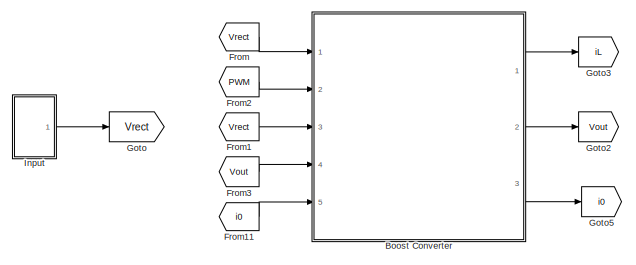
[diagram: root canvas - part 1/2, top left region]
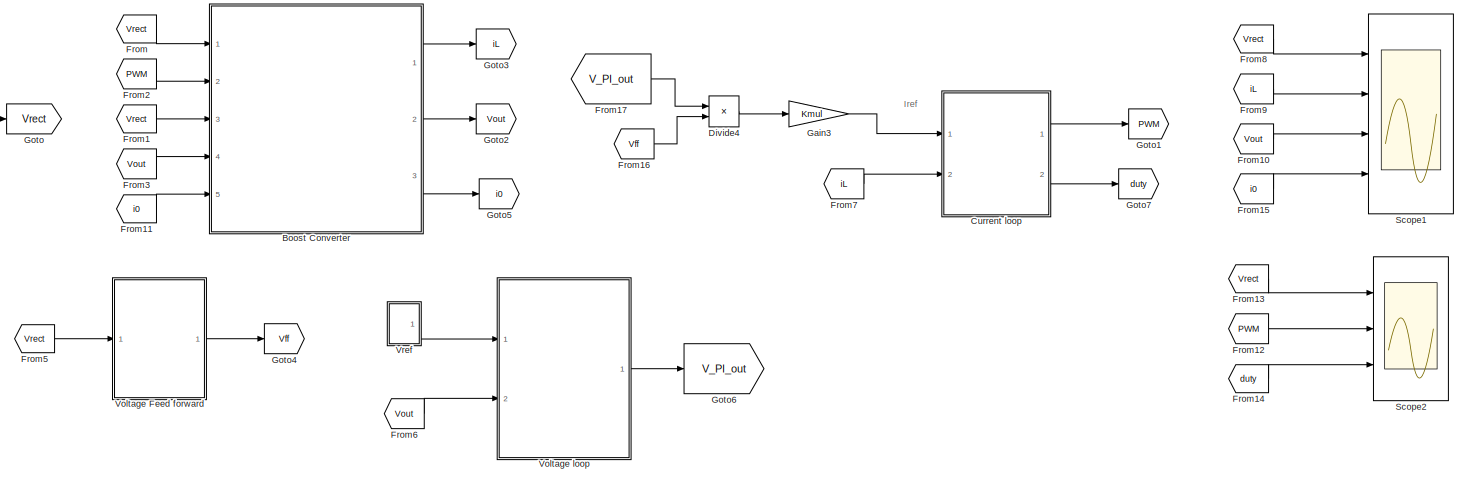
[diagram: root canvas - part 2/2, most of the canvas]
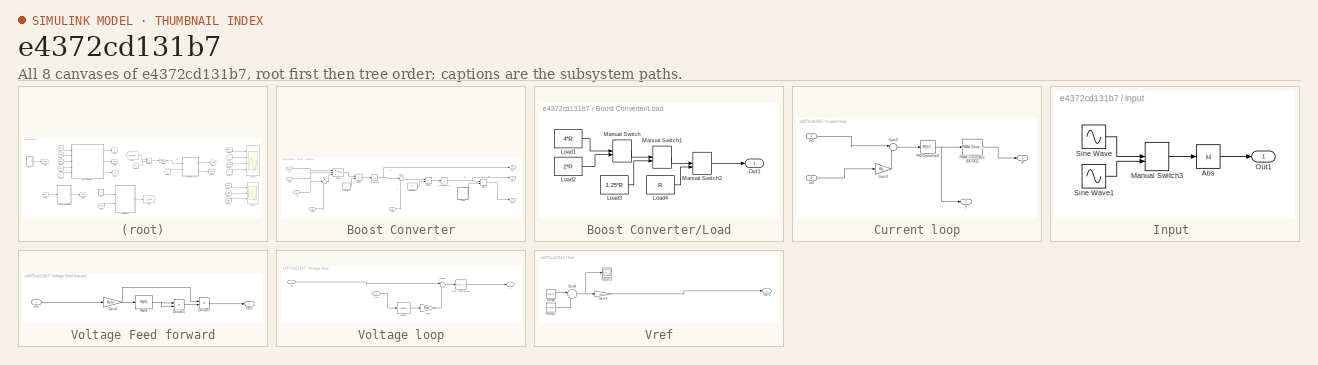
[diagram: thumbnail index - all 8 canvases of the model, root first then tree order]
MODEL slx_e4372cd131b7
KIND model
CONFIG AbsTol = auto
CONFIG EnableMultiTasking = off
CONFIG FixedStep = auto
CONFIG MaxStep = auto
CONFIG MinStep = auto
CONFIG RelTol = 1e-3
CONFIG SampleTimeConstraint = Unconstrained
CONFIG SolverName = ode8
CONFIG StartTime = 0.0
CONFIG StopTime = 10
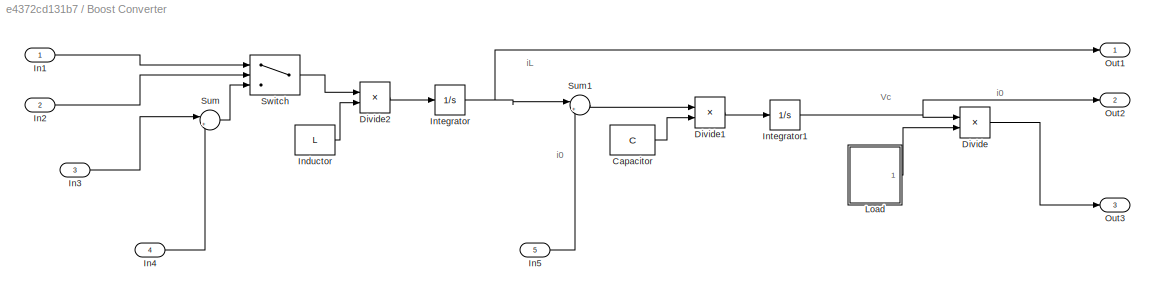
BLOCK [SubSystem] Boost Converter
  Ports = [5, 3]
  RequestExecContextInheritance = off
BLOCK [Constant] Boost Converter/Capacitor
  SampleTime = Tsi
  Value = C
BLOCK [Product] Boost Converter/Divide
  Inputs = */
  Ports = [2, 1]
BLOCK [Product] Boost Converter/Divide1
  Inputs = */
  Ports = [2, 1]
BLOCK [Product] Boost Converter/Divide2
  Inputs = */
  Ports = [2, 1]
BLOCK [Inport] Boost Converter/In1
BLOCK [Inport] Boost Converter/In2
  Port = 2
BLOCK [Inport] Boost Converter/In3
  Port = 3
BLOCK [Inport] Boost Converter/In4
  Port = 4
BLOCK [Inport] Boost Converter/In5
  Port = 5
BLOCK [Constant] Boost Converter/Inductor
  SampleTime = Tsi
  Value = L
BLOCK [Integrator] Boost Converter/Integrator
  Ports = [1, 1]
BLOCK [Integrator] Boost Converter/Integrator1
  InitialCondition = Vin_pk
  Ports = [1, 1]
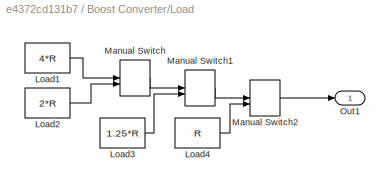
BLOCK [SubSystem] Boost Converter/Load
  Ports = [0, 1]
  RequestExecContextInheritance = off
BLOCK [Constant] Boost Converter/Load/Load1
  SampleTime = Tsi
  Value = 4*R
BLOCK [Constant] Boost Converter/Load/Load2
  SampleTime = Tsi
  Value = 2*R
BLOCK [Constant] Boost Converter/Load/Load3
  SampleTime = Tsi
  Value = 1.25*R
BLOCK [Constant] Boost Converter/Load/Load4
  SampleTime = Tsi
  Value = R
BLOCK [ManualSwitch] Boost Converter/Load/Manual Switch
  CurrentSetting = 0
BLOCK [ManualSwitch] Boost Converter/Load/Manual Switch1
  CurrentSetting = 0
BLOCK [ManualSwitch] Boost Converter/Load/Manual Switch2
  CurrentSetting = 0
BLOCK [Outport] Boost Converter/Load/Out1
BLOCK [Outport] Boost Converter/Out1
BLOCK [Outport] Boost Converter/Out2
  Port = 2
BLOCK [Outport] Boost Converter/Out3
  Port = 3
BLOCK [Sum] Boost Converter/Sum
  Inputs = |+-
  Ports = [2, 1]
BLOCK [Sum] Boost Converter/Sum1
  Inputs = |+-
  Ports = [2, 1]
BLOCK [Switch] Boost Converter/Switch
  Criteria = u2 > Threshold
  InputSameDT = off
  SaturateOnIntegerOverflow = off
BLOCK [SubSystem] Current loop
  Ports = [2, 2]
  RequestExecContextInheritance = off
BLOCK [Gain] Current loop/Gain2
  Gain = KiL
BLOCK [Inport] Current loop/In1
BLOCK [Inport] Current loop/In2
  Port = 2
BLOCK [Outport] Current loop/P
BLOCK [Reference] Current loop/PID Controller2  REF=slpidlib/PID Controller
  Ports = [1, 1]
  SourceBlock = slpidlib/PID Controller
  SourceProductBaseCode = SL
  SourceType = PID 1dof
BLOCK [Reference] Current loop/PWM Generator (DC-DC)1  REF=spsPWMGeneratorDCDCLib/PWM Generator
(DC-DC)
  Ports = [1, 1]
  SourceBlock = spsPWMGeneratorDCDCLib/PWM Generator\n(DC-DC)
  SourceProductBaseCode = PS
  SourceType = PWM Generator (DC-DC)
BLOCK [Sum] Current loop/Sum3
  Inputs = |+-
  Ports = [2, 1]
BLOCK [Outport] Current loop/y
  Port = 2
BLOCK [Product] Divide4
  Inputs = **
  Ports = [2, 1]
BLOCK [From] From
  GotoTag = Vrect
BLOCK [From] From1
  GotoTag = Vrect
BLOCK [From] From10
  GotoTag = Vout
BLOCK [From] From11
  GotoTag = i0
BLOCK [From] From12
  GotoTag = PWM
BLOCK [From] From13
  GotoTag = Vrect
BLOCK [From] From14
  GotoTag = duty
BLOCK [From] From15
  GotoTag = i0
BLOCK [From] From16
  GotoTag = Vff
BLOCK [From] From17
  GotoTag = V_PI_out
BLOCK [From] From2
  GotoTag = PWM
BLOCK [From] From3
  GotoTag = Vout
BLOCK [From] From5
  GotoTag = Vrect
BLOCK [From] From6
  GotoTag = Vout
BLOCK [From] From7
  GotoTag = iL
BLOCK [From] From8
  GotoTag = Vrect
BLOCK [From] From9
  GotoTag = iL
BLOCK [Gain] Gain3
  Gain = Kmul
BLOCK [Goto] Goto
  GotoTag = Vrect
BLOCK [Goto] Goto1
  GotoTag = PWM
BLOCK [Goto] Goto2
  GotoTag = Vout
BLOCK [Goto] Goto3
  GotoTag = iL
BLOCK [Goto] Goto4
  GotoTag = Vff
BLOCK [Goto] Goto5
  GotoTag = i0
BLOCK [Goto] Goto6
  GotoTag = V_PI_out
BLOCK [Goto] Goto7
  GotoTag = duty
BLOCK [SubSystem] Input 
  Ports = [0, 1]
  RequestExecContextInheritance = off
BLOCK [Abs] Input /Abs
  SaturateOnIntegerOverflow = off
BLOCK [ManualSwitch] Input /Manual Switch3
BLOCK [Outport] Input /Out1
BLOCK [Sin] Input /Sine Wave
  Amplitude = Vin_pk
  Frequency = 2*pi*50
  Ports = [0, 1]
  SampleTime = 0
BLOCK [Sin] Input /Sine Wave1
  Amplitude = Vin_pk/2
  Frequency = 2*pi*50
  Ports = [0, 1]
  SampleTime = 0
BLOCK [Scope] Scope1
  Floating = off
  NumInputPorts = 4
  Ports = [4]
  ScopeSpecificationString = Simulink.scopes.TimeScopeBlockCfg('CurrentConfiguration', extmgr.ConfigurationSet(extmgr.Configuration('Core','General UI',true,'FigureColor',[1 1 1]),extmgr.Configuration('Core','Source UI',true),extmgr.Configuration('Sources','WiredSimulink',true,'DataLoggingVariableName','ScopeData1'),extmgr.Configuration('Visuals','Time Domain',true,'SerializedDisplays',{struct('MinYLimReal','-40.6525','MaxYLi...<+4081ch>
BLOCK [Scope] Scope2
  Floating = off
  NumInputPorts = 3
  Ports = [3]
  ScopeSpecificationString = Simulink.scopes.TimeScopeBlockCfg('CurrentConfiguration', extmgr.ConfigurationSet(extmgr.Configuration('Core','General UI',true,'FigureColor',[1 1 1]),extmgr.Configuration('Core','Source UI',true),extmgr.Configuration('Sources','WiredSimulink',true,'DataLoggingVariableName','ScopeData2'),extmgr.Configuration('Visuals','Time Domain',true,'SerializedDisplays',{struct('MinYLimReal','-40.6525','MaxYLi...<+3172ch>
BLOCK [SubSystem] Voltage Feed forward
  Ports = [1, 1]
  RequestExecContextInheritance = off
BLOCK [Product] Voltage Feed forward/Divide3
  Inputs = */
  Ports = [2, 1]
BLOCK [Product] Voltage Feed forward/Divide5
  Inputs = **
  Ports = [2, 1]
BLOCK [Gain] Voltage Feed forward/Gain6
  Gain = Kvin
BLOCK [Inport] Voltage Feed forward/In1
BLOCK [Outport] Voltage Feed forward/Out1
BLOCK [Reference] Voltage Feed forward/RMS  REF=spsRMSLib/RMS
  Ports = [1, 1]
  SourceBlock = spsRMSLib/RMS
  SourceProductBaseCode = PS
  SourceType = RMS
BLOCK [SubSystem] Voltage loop
  Ports = [2, 1]
  RequestExecContextInheritance = off
BLOCK [Gain] Voltage loop/Gain
  Gain = Kvo
BLOCK [Inport] Voltage loop/In1
BLOCK [Inport] Voltage loop/In2
  Port = 2
BLOCK [Reference] Voltage loop/Mean1  REF=spsMeanLib/Mean
  Ports = [1, 1]
  SourceBlock = spsMeanLib/Mean
  SourceProductBaseCode = PS
  SourceType = Mean
BLOCK [Reference] Voltage loop/PID Controller1  REF=slpidlib/PID Controller
  Ports = [1, 1]
  SourceBlock = slpidlib/PID Controller
  SourceProductBaseCode = SL
  SourceType = PID 1dof
BLOCK [Sum] Voltage loop/Sum2
  Inputs = |+-
  Ports = [2, 1]
BLOCK [Outport] Voltage loop/y
BLOCK [SubSystem] Vref
  Ports = [0, 1]
  RequestExecContextInheritance = off
BLOCK [Gain] Vref/Gain4
  Gain = Kvo
BLOCK [Outport] Vref/Out1
BLOCK [Reference] Vref/Ramp  REF=simulink/Sources/Ramp
  Ports = [0, 1]
  SourceBlock = simulink/Sources/Ramp
  SourceProductBaseCode = SL
  SourceType = Ramp
BLOCK [Reference] Vref/Ramp1  REF=simulink/Sources/Ramp
  Ports = [0, 1]
  SourceBlock = simulink/Sources/Ramp
  SourceProductBaseCode = SL
  SourceType = Ramp
BLOCK [Scope] Vref/Scope3
  Floating = off
  NumInputPorts = 1
  Ports = [1]
  ScopeSpecificationString = Simulink.scopes.TimeScopeBlockCfg('CurrentConfiguration', extmgr.ConfigurationSet(extmgr.Configuration('Core','General UI',true),extmgr.Configuration('Core','Source UI',true),extmgr.Configuration('Sources','WiredSimulink',true,'DataLoggingVariableName','ScopeData1'),extmgr.Configuration('Visuals','Time Domain',true,'SerializedDisplays',{struct('MinYLimReal','318.3725','MaxYLimReal','386.8475','YLa...<+1421ch>
BLOCK [Sum] Vref/Sum4
  Inputs = |++
  Ports = [2, 1]
ANNOTATION (root): Iref
ANNOTATION Boost Converter: Vc
ANNOTATION Boost Converter: i0
ANNOTATION Boost Converter: iL
LINE Boost Converter/Capacitor:1 -> Boost Converter/Divide1:2
LINE Boost Converter/Divide1:1 -> Boost Converter/Integrator1:1
LINE Boost Converter/Divide2:1 -> Boost Converter/Integrator:1
LINE Boost Converter/Divide:1 -> Boost Converter/Out3:1
LINE Boost Converter/In1:1 -> Boost Converter/Switch:1
LINE Boost Converter/In2:1 -> Boost Converter/Switch:2
LINE Boost Converter/In3:1 -> Boost Converter/Sum:1
LINE Boost Converter/In4:1 -> Boost Converter/Sum:2
LINE Boost Converter/In5:1 -> Boost Converter/Sum1:2
LINE Boost Converter/Inductor:1 -> Boost Converter/Divide2:2
NET Boost Converter/Integrator1:1 -> Boost Converter/Divide:1, Boost Converter/Out2:1
NET Boost Converter/Integrator:1 -> Boost Converter/Out1:1, Boost Converter/Sum1:1
LINE Boost Converter/Load/Load1:1 -> Boost Converter/Load/Manual Switch:1
LINE Boost Converter/Load/Load2:1 -> Boost Converter/Load/Manual Switch:2
LINE Boost Converter/Load/Load3:1 -> Boost Converter/Load/Manual Switch1:2
LINE Boost Converter/Load/Load4:1 -> Boost Converter/Load/Manual Switch2:2
LINE Boost Converter/Load/Manual Switch1:1 -> Boost Converter/Load/Manual Switch2:1
LINE Boost Converter/Load/Manual Switch2:1 -> Boost Converter/Load/Out1:1
LINE Boost Converter/Load/Manual Switch:1 -> Boost Converter/Load/Manual Switch1:1
LINE Boost Converter/Load:1 -> Boost Converter/Divide:2
LINE Boost Converter/Sum1:1 -> Boost Converter/Divide1:1
LINE Boost Converter/Sum:1 -> Boost Converter/Switch:3
LINE Boost Converter/Switch:1 -> Boost Converter/Divide2:1
LINE Boost Converter:1 -> Goto3:1
LINE Boost Converter:2 -> Goto2:1
LINE Boost Converter:3 -> Goto5:1
LINE Current loop/Gain2:1 -> Current loop/Sum3:2
LINE Current loop/In1:1 -> Current loop/Sum3:1
LINE Current loop/In2:1 -> Current loop/Gain2:1
NET Current loop/PID Controller2:1 -> Current loop/PWM Generator (DC-DC)1:1, Current loop/y:1
LINE Current loop/PWM Generator (DC-DC)1:1 -> Current loop/P:1
LINE Current loop/Sum3:1 -> Current loop/PID Controller2:1
LINE Current loop:1 -> Goto1:1
LINE Current loop:2 -> Goto7:1
LINE Divide4:1 -> Gain3:1
LINE From10:1 -> Scope1:3
LINE From11:1 -> Boost Converter:5
LINE From12:1 -> Scope2:2
LINE From13:1 -> Scope2:1
LINE From14:1 -> Scope2:3
LINE From15:1 -> Scope1:4
LINE From16:1 -> Divide4:2
LINE From17:1 -> Divide4:1
LINE From1:1 -> Boost Converter:3
LINE From2:1 -> Boost Converter:2
LINE From3:1 -> Boost Converter:4
LINE From5:1 -> Voltage Feed forward:1
LINE From6:1 -> Voltage loop:2
LINE From7:1 -> Current loop:2
LINE From8:1 -> Scope1:1
LINE From9:1 -> Scope1:2
LINE From:1 -> Boost Converter:1
LINE Gain3:1 -> Current loop:1
LINE Input /Abs:1 -> Input /Out1:1
LINE Input /Manual Switch3:1 -> Input /Abs:1
LINE Input /Sine Wave1:1 -> Input /Manual Switch3:2
LINE Input /Sine Wave:1 -> Input /Manual Switch3:1
LINE Input :1 -> Goto:1
LINE Voltage Feed forward/Divide3:1 -> Voltage Feed forward/Out1:1
LINE Voltage Feed forward/Divide5:1 -> Voltage Feed forward/Divide3:2
NET Voltage Feed forward/Gain6:1 -> Voltage Feed forward/Divide3:1, Voltage Feed forward/RMS:1
LINE Voltage Feed forward/In1:1 -> Voltage Feed forward/Gain6:1
NET Voltage Feed forward/RMS:1 -> Voltage Feed forward/Divide5:1, Voltage Feed forward/Divide5:2
LINE Voltage Feed forward:1 -> Goto4:1
LINE Voltage loop/Gain:1 -> Voltage loop/Sum2:2
LINE Voltage loop/In1:1 -> Voltage loop/Sum2:1
LINE Voltage loop/In2:1 -> Voltage loop/Mean1:1
LINE Voltage loop/Mean1:1 -> Voltage loop/Gain:1
LINE Voltage loop/PID Controller1:1 -> Voltage loop/y:1
LINE Voltage loop/Sum2:1 -> Voltage loop/PID Controller1:1
LINE Voltage loop:1 -> Goto6:1
LINE Vref/Gain4:1 -> Vref/Out1:1
LINE Vref/Ramp1:1 -> Vref/Sum4:2
LINE Vref/Ramp:1 -> Vref/Sum4:1
NET Vref/Sum4:1 -> Vref/Gain4:1, Vref/Scope3:1
LINE Vref:1 -> Voltage loop:1
note: NET lines group one-source signal fan-out (src -> all destinations, sorted); 1:1 wires keep LINE
